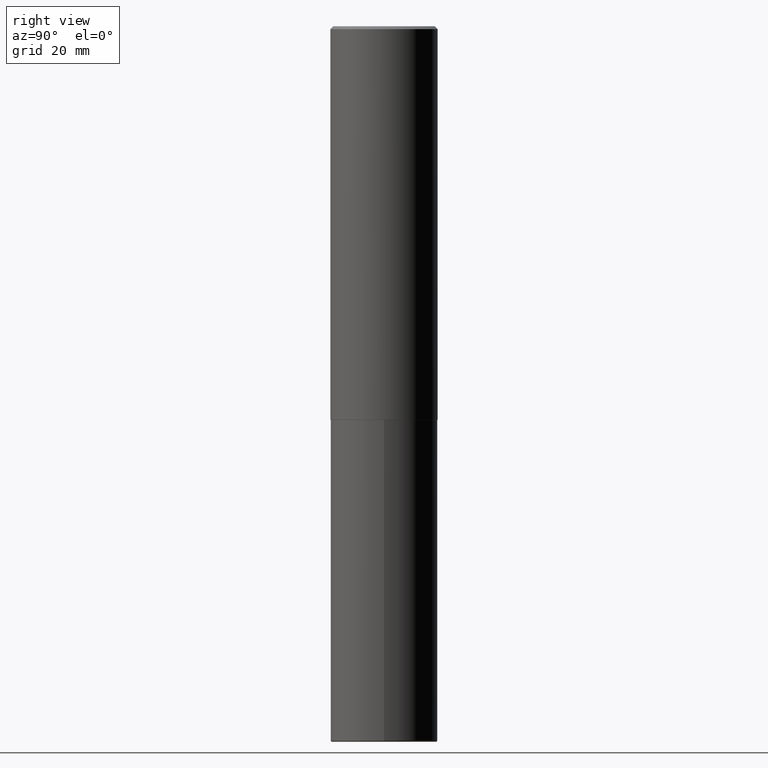
[diagram: clean part render]
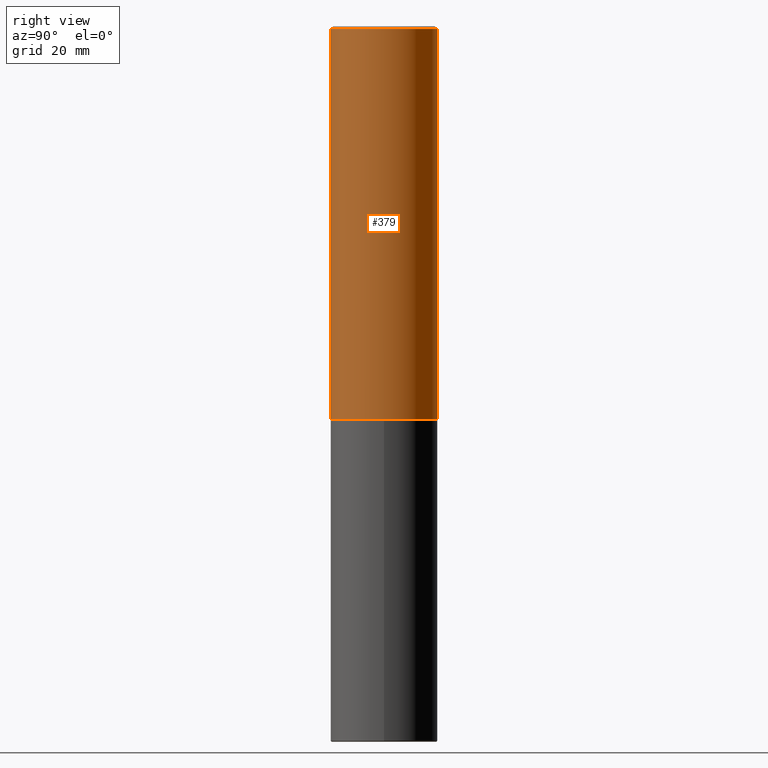
[diagram: same view with one face highlighted and labeled with its STEP entity id]
A machine part, right view. The second image highlights one B-rep face of the part: STEP entity #379.
In plain terms, the highlighted cylindrical surface (partial cylindrical patch) has radius 9.525 mm, axis along (-0, 0, 1).
Its self-contained STEP definition (entity closure, byte-faithful):
#9 = AXIS2_PLACEMENT_3D ( 'NONE', #332, #124, #162 ) ;
#26 = EDGE_LOOP ( 'NONE', ( #187, #192, #321, #111 ) ) ;
#33 = VERTEX_POINT ( 'NONE', #161 ) ;
#48 = LINE ( 'NONE', #58, #270 ) ;
#53 = DIRECTION ( 'NONE',  ( -2.446040391741596606E-29, 3.490662795793665557E-15, 1.000000000000000000 ) ) ;
#58 = CARTESIAN_POINT ( 'NONE',  ( 2.664535259100376880E-15, 0.3750000000000002220, -1.308998548422625521E-15 ) ) ;
#65 = EDGE_CURVE ( 'NONE', #197, #389, #68, .T. ) ;
#68 = LINE ( 'NONE', #128, #103 ) ;
#82 = CIRCLE ( 'NONE', #142, 0.3750000000000000555 ) ;
#85 = VERTEX_POINT ( 'NONE', #396 ) ;
#92 = CYLINDRICAL_SURFACE ( 'NONE', #9, 0.3750000000000002220 ) ;
#103 = VECTOR ( 'NONE', #266, 39.37007874015748143 ) ;
#111 = ORIENTED_EDGE ( 'NONE', *, *, #65, .F. ) ;
#124 = DIRECTION ( 'NONE',  ( -2.446040391741596606E-29, 3.490662795793665557E-15, 1.000000000000000000 ) ) ;
#128 = CARTESIAN_POINT ( 'NONE',  ( -2.618611004132351594E-15, -0.3750000000000002220, 1.308998548422625521E-15 ) ) ;
#142 = AXIS2_PLACEMENT_3D ( 'NONE', #226, #304, #296 ) ;
#161 = CARTESIAN_POINT ( 'NONE',  ( 2.664535259100411196E-15, 0.3749999999999907296, -2.749000000000000998 ) ) ;
#162 = DIRECTION ( 'NONE',  ( -6.982962677686266711E-15, -1.000000000000000000, 3.490662795793665951E-15 ) ) ;
#170 = CIRCLE ( 'NONE', #232, 0.3750000000000003886 ) ;
#178 = CARTESIAN_POINT ( 'NONE',  ( 6.724165036897648492E-29, -9.595832025636787455E-15, -2.749000000000000110 ) ) ;
#180 = EDGE_CURVE ( 'NONE', #33, #85, #48, .T. ) ;
#187 = ORIENTED_EDGE ( 'NONE', *, *, #195, .T. ) ;
#192 = ORIENTED_EDGE ( 'NONE', *, *, #180, .T. ) ;
#195 = EDGE_CURVE ( 'NONE', #197, #33, #170, .T. ) ;
#197 = VERTEX_POINT ( 'NONE', #254 ) ;
#226 = CARTESIAN_POINT ( 'NONE',  ( 4.892080783483214581E-31, -6.981325591587361238E-17, -0.02000000000000008715 ) ) ;
#232 = AXIS2_PLACEMENT_3D ( 'NONE', #178, #53, #316 ) ;
#235 = CARTESIAN_POINT ( 'NONE',  ( -2.572686749164323547E-15, -0.3750000000000001110, -0.01999999999999877570 ) ) ;
#248 = DIRECTION ( 'NONE',  ( -2.446040391741596606E-29, 3.490662795793665557E-15, 1.000000000000000000 ) ) ;
#254 = CARTESIAN_POINT ( 'NONE',  ( -2.618611004132284935E-15, -0.3750000000000099920, -2.748999999999999222 ) ) ;
#266 = DIRECTION ( 'NONE',  ( -2.446040391741596606E-29, 3.490662795793665557E-15, 1.000000000000000000 ) ) ;
#270 = VECTOR ( 'NONE', #248, 39.37007874015748143 ) ;
#296 = DIRECTION ( 'NONE',  ( -6.982962677686265922E-15, -1.000000000000000000, 3.494488891895536035E-15 ) ) ;
#304 = DIRECTION ( 'NONE',  ( -2.446040391741596606E-29, 3.490662795793665557E-15, 1.000000000000000000 ) ) ;
#316 = DIRECTION ( 'NONE',  ( -6.982962677686265922E-15, -1.000000000000000000, 2.913971193241877611E-15 ) ) ;
#321 = ORIENTED_EDGE ( 'NONE', *, *, #406, .F. ) ;
#332 = CARTESIAN_POINT ( 'NONE',  ( 0.000000000000000000, 0.000000000000000000, 0.000000000000000000 ) ) ;
#379 = ADVANCED_FACE ( 'NONE', ( #398 ), #92, .T. ) ;
#389 = VERTEX_POINT ( 'NONE', #235 ) ;
#396 = CARTESIAN_POINT ( 'NONE',  ( 2.618611004132350411E-15, 0.3749999999999999445, -0.02000000000000139513 ) ) ;
#398 = FACE_OUTER_BOUND ( 'NONE', #26, .T. ) ;
#406 = EDGE_CURVE ( 'NONE', #389, #85, #82, .T. ) ;